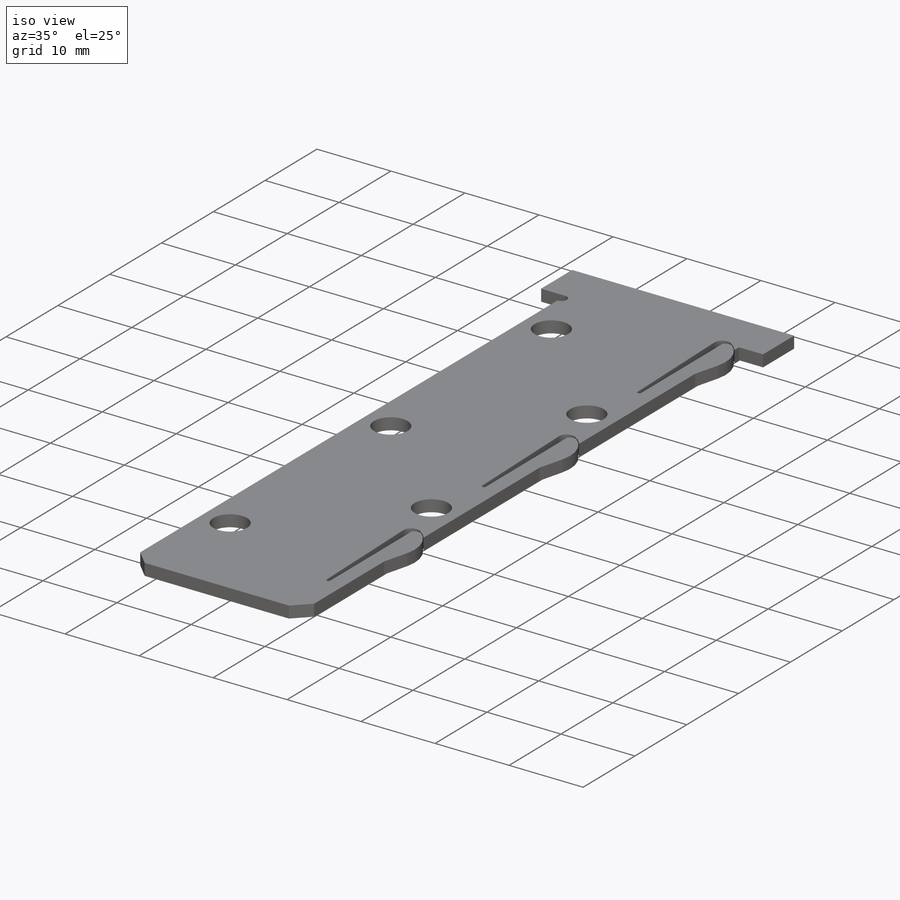
[diagram: iso view]
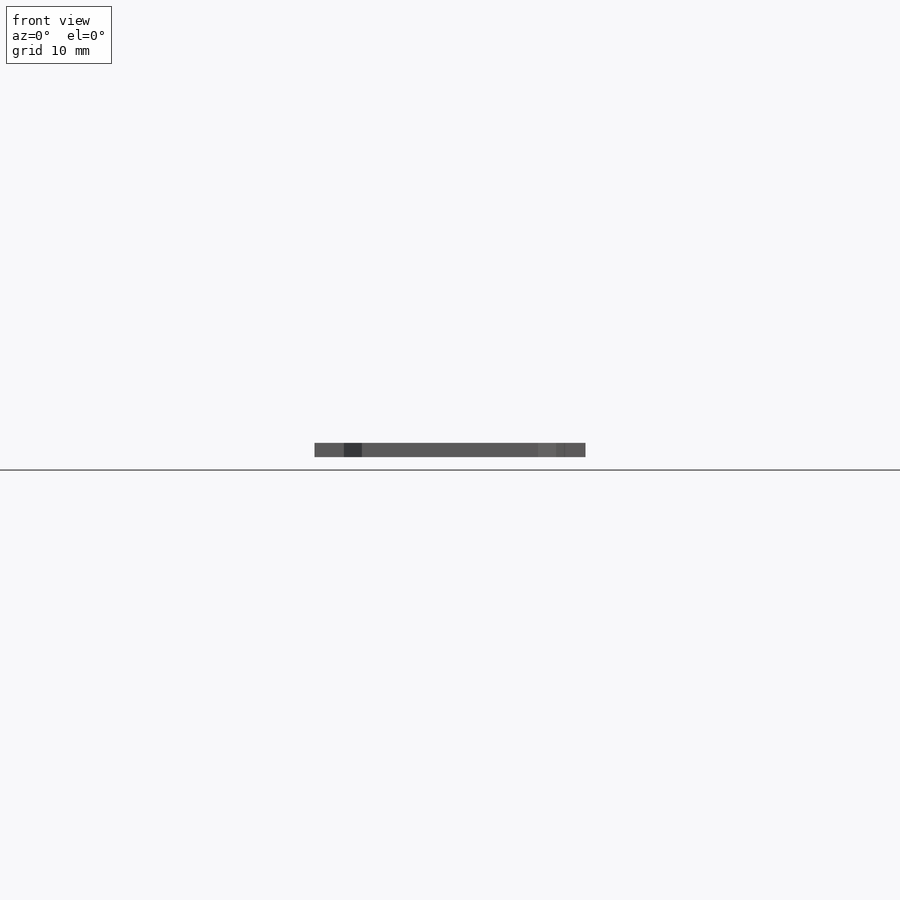
[diagram: front view]
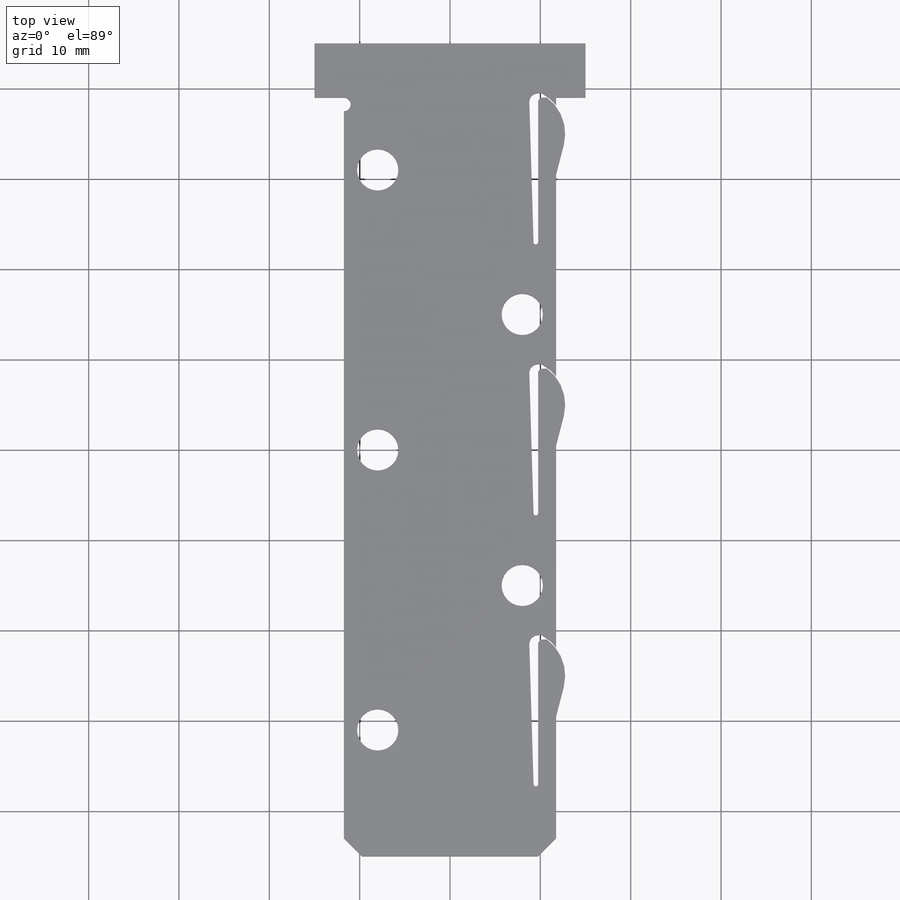
[diagram: top view]
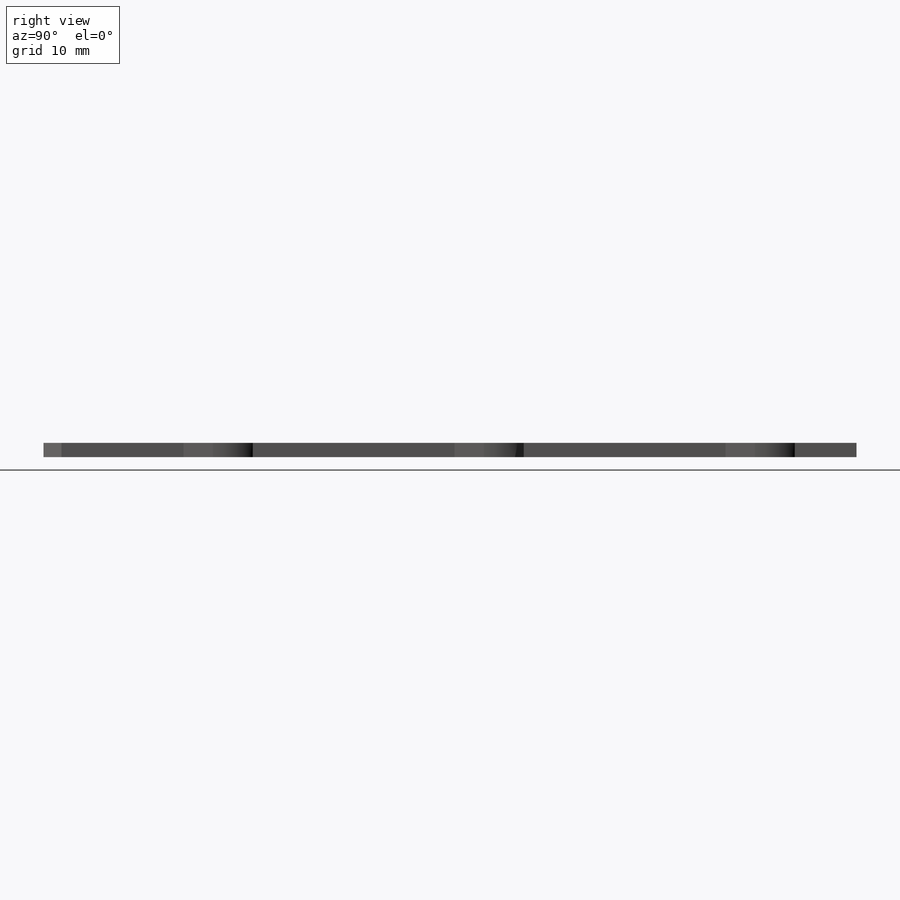
[diagram: right view]
SOLIDWORKS PART (.sldprt)
format: sldprt  version: not decoded by parser v0  size: 326,144 bytes
history: native  units: mm
features: sketch x6, extrude x3, cut_extrude x3, fillet x2, material x1, pattern_linear x1, chamfer x1 (+16 scaffold rows collapsed)
feature tree (33):
  scaffold x16  (default folders/planes/origin — collapsed)
  material  "Material <not specified>"
  sketch  "Sketch1"  dims[D1=23.5mm D2=90.0mm]
  extrude  "Boss-Extrude1"  Depth=1.5875mm
  sketch  "Sketch2"  dims[D1=10.0mm D2=4.0mm D3=25.0mm D4=4.5mm]
  extrude  "Boss-Extrude2"  [1 undecoded]
  sketch  "Sketch4"  dims[c1.D3=0.25mm c1.D4=5.0mm c1.D1=4.0mm c1.D2=2.0mm c2.D3=~15.547253mm c3.D3=5.0deg c3.D4=0.05mm c3.D5=12.0mm c4.D4=0.1mm c4.D6=0.5mm c4.D7=1.0mm]
  cut_extrude  "Cut-Extrude3"  [1 undecoded]
  pattern_linear  "LPattern1"  Count1=3 Count2=1 Spacing1=30mm Spacing2=10mm
  sketch  "Sketch5"  dims[c1.D1=4.572mm c1.D2=14.0mm c1.D3=31.0mm c2.D2=31.0mm c2.D3=4.0mm c2.D4=31.0mm c2.D5=15.0mm c2.D6=4.0mm c2.D7=15.0mm c3.D3=8.0mm c3.D6=8.0mm]
  cut_extrude  "Cut-Extrude4"  [1 undecoded]
  chamfer  "Chamfer1"  Distance=2mm Angle=45deg
  sketch  "Sketch6"  dims[D1=30.0mm D2=39.0mm]
  extrude  "Boss-Extrude3"  [1 undecoded]
  fillet  "Fillet1"  Radius=1mm
  fillet  "Fillet2"  Radius=0.5mm
  sketch  "Sketch7"  dims[D1=1.5mm]
  cut_extrude  "Cut-Extrude5"  [1 undecoded]
decode coverage: 11 of 16 modeling features carry decoded parameters
note: ~ marks probable driven/reference dimensions
note: 5 parameter values undecoded
summary: no parameter record found for 5 features
note: suppression state not decoded; provenance and decode notes live in map.json
